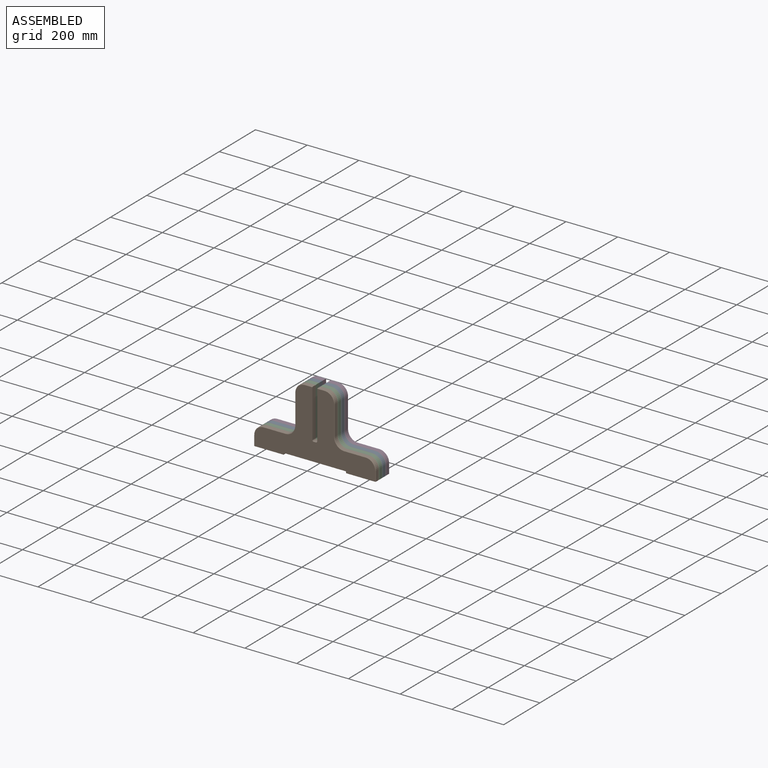
[diagram: assembled view]
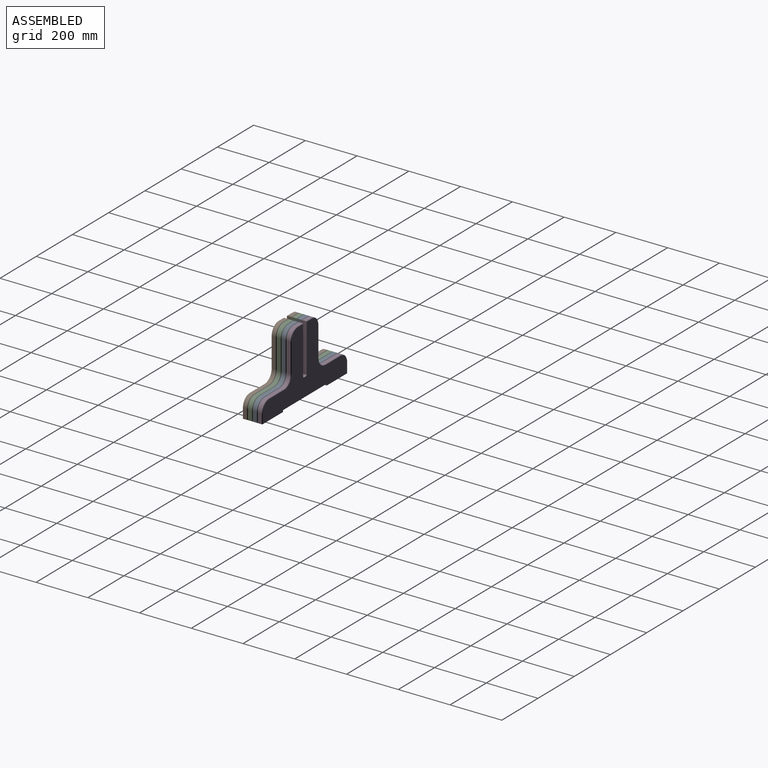
[diagram: assembled view, second angle]
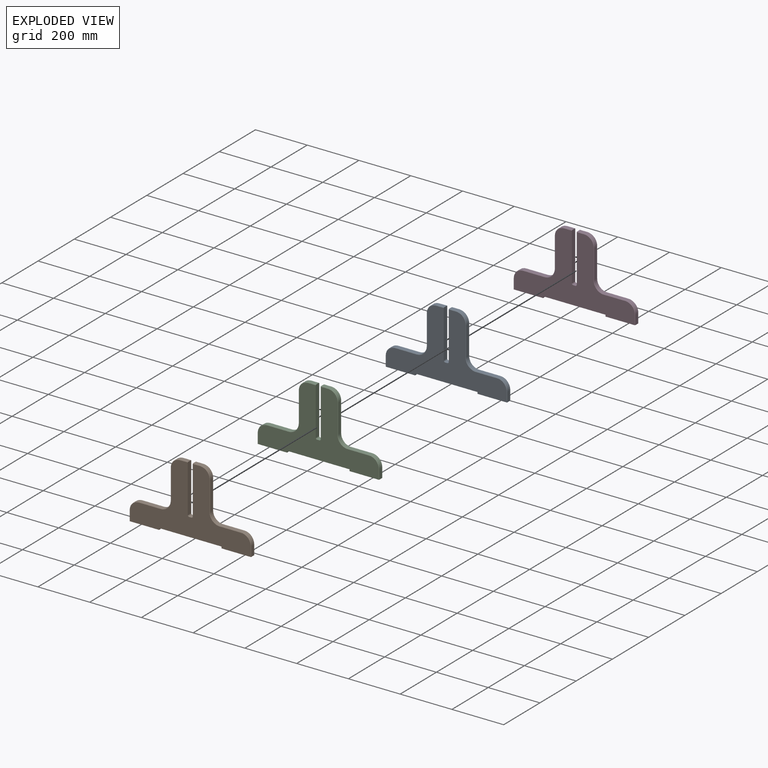
[diagram: exploded view]
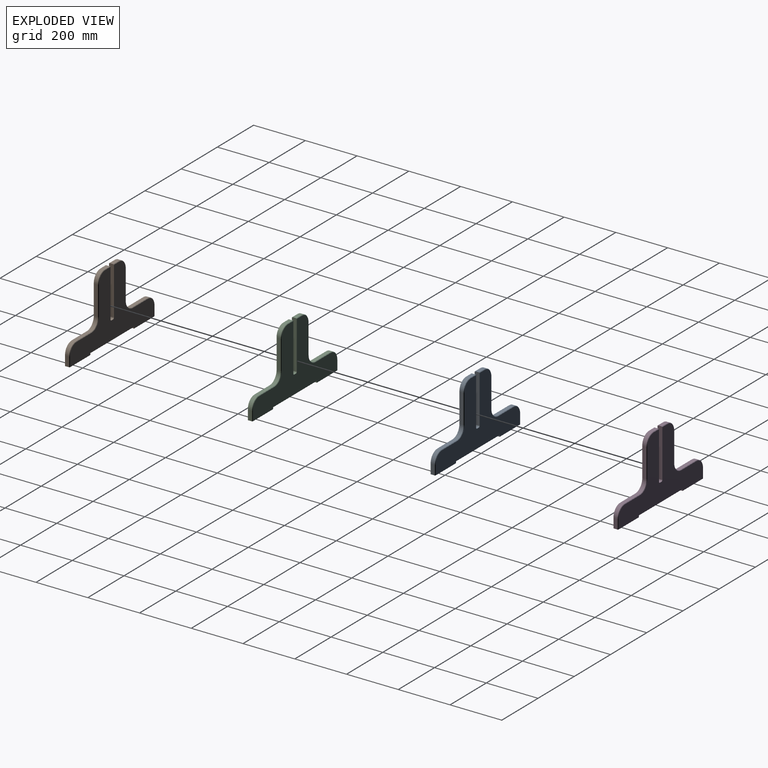
[diagram: exploded view, second angle]
ASSEMBLY  parts=4 mates=3
PART A: 54 faces, bbox 469.9x19.1x266.7 mm
  f0: plane 38.1x15.88mm, normal (-1,0,0), area 604.8mm2, adj f1,f23,f32,f47
  f1: plane 114.3x19.05mm, normal (0,0,-1), area 2174.9mm2, adj f0,f2,f16,f17,f32,f47
  f2: plane 19.05x6.35mm, normal (1,0,0), area 121mm2, adj f1,f3,f16,f17
  f3: plane 241.3x19.05mm, normal (0,0,-1), area 4596.8mm2, adj f2,f4,f16,f17
  f4: plane 19.05x6.35mm, normal (-1,0,0), area 121mm2, adj f3,f5,f16,f17
  f5: plane 114.3x19.05mm, normal (0,0,-1), area 2174.9mm2, adj f4,f6,f16,f17,f33,f40
  f6: plane 38.1x15.88mm, normal (1,0,0), area 604.8mm2, adj f5,f18,f33,f40
  f7: plane 82.55x15.88mm, normal (0,0,1), area 1310.5mm2, adj f18,f19,f35,f42
  f8: plane 114.3x15.88mm, normal (1,0,0), area 1814.5mm2, adj f19,f20,f37,f44
  f9: plane 28.58x15.88mm, normal (0,0,1), area 453.6mm2, adj f10,f20,f39,f46
  f10: plane 185.42x19.05mm, normal (-1,0,0), area 3529.7mm2, adj f9,f16,f17,f24,f39,f46
  f11: plane 19.05x8.89mm, normal (0,0,1), area 169.4mm2, adj f16,f17,f24,f25
  f12: plane 185.42x19.05mm, normal (1,0,0), area 3529.7mm2, adj f13,f16,f17,f25,f26,f53
  f13: plane 28.58x15.88mm, normal (0,0,1), area 453.6mm2, adj f12,f21,f26,f53
  f14: plane 114.3x15.88mm, normal (-1,0,0), area 1814.5mm2, adj f21,f22,f28,f51
  f15: plane 82.55x15.88mm, normal (0,0,1), area 1310.5mm2, adj f22,f23,f30,f49
  f16: plane 466.73x265.11mm, normal (0,-1,0), area 57662.6mm2, adj f1,f2,f3,f4,f5,f10,f11,f12
  f17: plane 466.73x265.11mm, normal (0,1,0), area 57662.6mm2, adj f1,f2,f3,f4,f5,f10,f11,f12
  f18: cylinder r=38.1mm len=38.1mm, axis (0,1,0), area 950.1mm2, adj f6,f7,f34,f41
  f19: cylinder r=38.1mm len=38.1mm, axis (0,1,0), area 950.1mm2, adj f7,f8,f36,f43
  f20: cylinder r=38.1mm len=38.1mm, axis (0,1,0), area 950.1mm2, adj f8,f9,f38,f45
  f21: cylinder r=38.1mm len=38.1mm, axis (0,-1,0), area 950.1mm2, adj f13,f14,f27,f52
  f22: cylinder r=38.1mm len=38.1mm, axis (0,1,0), area 950.1mm2, adj f14,f15,f29,f50
  f23: cylinder r=38.1mm len=38.1mm, axis (0,1,0), area 950.1mm2, adj f0,f15,f31,f48
  f24: cylinder r=5.08mm len=19.05mm, axis (0,-1,0), area 152mm2, adj f10,f11,f16,f17
  f25: cylinder r=5.08mm len=19.05mm, axis (0,-1,0), area 152mm2, adj f11,f12,f16,f17
  f26: plane 28.58x1.59mm, normal (0,0.71,0.71), area 64.2mm2, adj f12,f13,f17,f27
  f27: cone r=36.51mm half-angle=45deg, axis (0,-1,0), area 131.6mm2, adj f17,f21,f26,f28
  f28: plane 114.3x1.59mm, normal (-0.71,0.71,0), area 256.6mm2, adj f14,f17,f27,f29
  f29: cone r=39.69mm half-angle=45deg, axis (0,1,0), area 137.2mm2, adj f17,f22,f28,f30
  f30: plane 82.55x1.59mm, normal (0,0.71,0.71), area 185.3mm2, adj f15,f17,f29,f31
  f31: cone r=36.51mm half-angle=45deg, axis (0,-1,0), area 131.6mm2, adj f17,f23,f30,f32
  f32: plane 38.1x1.59mm, normal (-0.71,0.71,0), area 85.5mm2, adj f0,f1,f17,f31
  f33: plane 38.1x1.59mm, normal (0.71,0.71,0), area 85.5mm2, adj f5,f6,f17,f34
  f34: cone r=36.51mm half-angle=45deg, axis (0,-1,0), area 131.6mm2, adj f17,f18,f33,f35
  f35: plane 82.55x1.59mm, normal (0,0.71,0.71), area 185.3mm2, adj f7,f17,f34,f36
  f36: cone r=39.69mm half-angle=45deg, axis (0,1,0), area 137.2mm2, adj f17,f19,f35,f37
  f37: plane 114.3x1.59mm, normal (0.71,0.71,0), area 256.6mm2, adj f8,f17,f36,f38
  f38: cone r=36.51mm half-angle=45deg, axis (0,-1,0), area 131.6mm2, adj f17,f20,f37,f39
  f39: plane 28.58x1.59mm, normal (0,0.71,0.71), area 64.2mm2, adj f9,f10,f17,f38
  f40: plane 38.1x1.59mm, normal (0.71,-0.71,0), area 85.5mm2, adj f5,f6,f16,f41
  f41: cone r=36.51mm half-angle=45deg, axis (0,1,0), area 131.6mm2, adj f16,f18,f40,f42
  f42: plane 82.55x1.59mm, normal (0,-0.71,0.71), area 185.3mm2, adj f7,f16,f41,f43
  f43: cone r=39.69mm half-angle=45deg, axis (0,-1,0), area 137.2mm2, adj f16,f19,f42,f44
  f44: plane 114.3x1.59mm, normal (0.71,-0.71,0), area 256.6mm2, adj f8,f16,f43,f45
  f45: cone r=36.51mm half-angle=45deg, axis (0,1,0), area 131.6mm2, adj f16,f20,f44,f46
  f46: plane 28.58x1.59mm, normal (0,-0.71,0.71), area 64.2mm2, adj f9,f10,f16,f45
  f47: plane 38.1x1.59mm, normal (-0.71,-0.71,0), area 85.5mm2, adj f0,f1,f16,f48
  f48: cone r=36.51mm half-angle=45deg, axis (0,1,0), area 131.6mm2, adj f16,f23,f47,f49
  f49: plane 82.55x1.59mm, normal (0,-0.71,0.71), area 185.3mm2, adj f15,f16,f48,f50
  f50: cone r=39.69mm half-angle=45deg, axis (0,-1,0), area 137.2mm2, adj f16,f22,f49,f51
  f51: plane 114.3x1.59mm, normal (-0.71,-0.71,0), area 256.6mm2, adj f14,f16,f50,f52
  f52: cone r=36.51mm half-angle=45deg, axis (0,1,0), area 131.6mm2, adj f16,f21,f51,f53
  f53: plane 28.58x1.59mm, normal (0,-0.71,0.71), area 64.2mm2, adj f12,f13,f16,f52
PART B: same geometry as A
PART C: same geometry as A
PART D: same geometry as A
PLACE A t=(0,899.81,601.26)mm
PLACE B t=(0,861.71,601.26)mm fixed
PLACE C t=(0,880.76,601.26)mm
PLACE D t=(0,918.86,601.26)mm
MATE fastened A.f16 <-> C.f17  axis (0,-1,0) through (0,880.76,523.13)mm
MATE fastened B.f17 <-> C.f16  axis (0,1,0) through (0,861.71,523.13)mm
MATE fastened D.f16 <-> A.f17  axis (0,-1,0) through (0,899.81,523.13)mm
